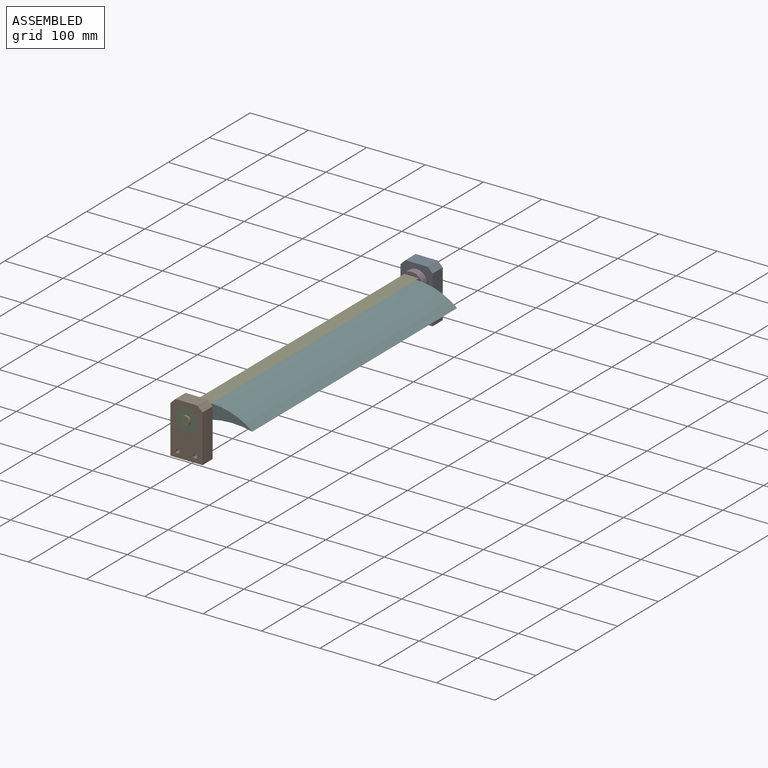
[diagram: assembled view]
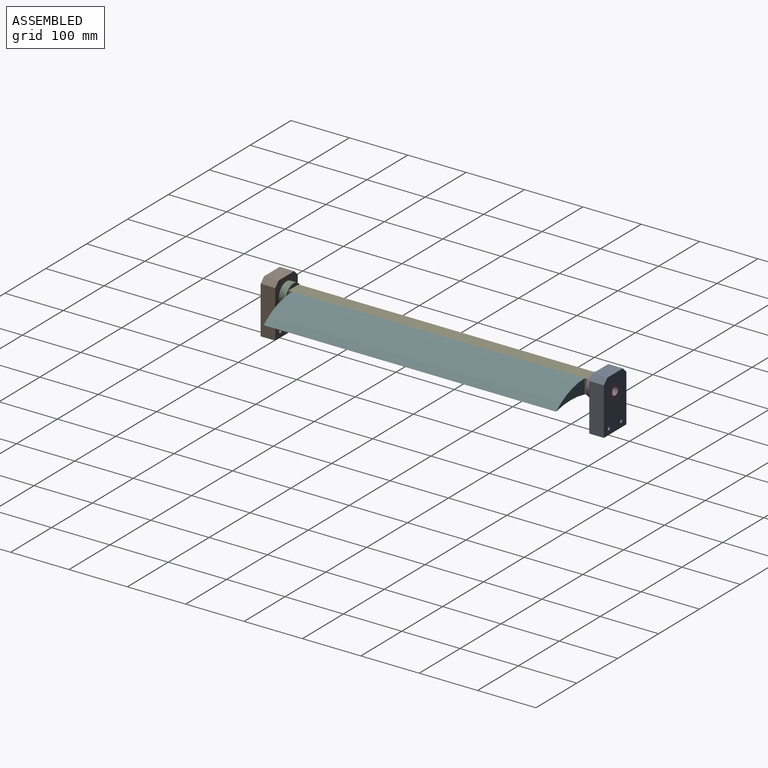
[diagram: assembled view, second angle]
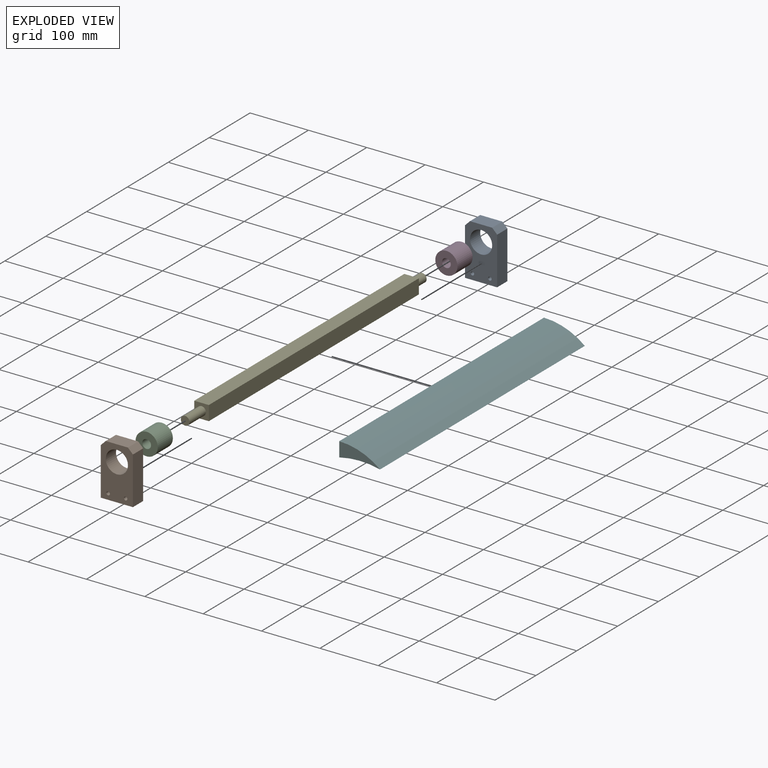
[diagram: exploded view]
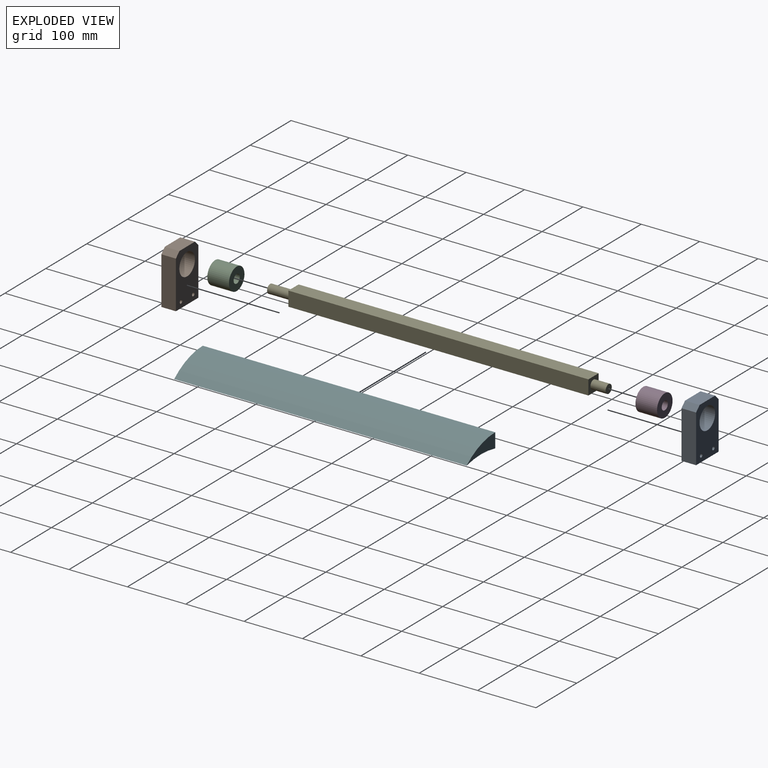
[diagram: exploded view, second angle]
ASSEMBLY  parts=6 mates=5
PART A: 11 faces, bbox 55x25x90 mm
  f0: plane 81.5x25mm, normal (-1,0,0), area 2037.5mm2, adj f1,f5,f7,f8
  f1: plane 55x25mm, normal (0,0,-1), area 1375mm2, adj f0,f2,f7,f8
  f2: plane 81.5x25mm, normal (1,0,0), area 2037.5mm2, adj f1,f3,f7,f8
  f3: plane 25x8.5mm, normal (0.71,0,0.71), area 300.5mm2, adj f2,f4,f7,f8
  f4: plane 38x25mm, normal (0,0,1), area 950mm2, adj f3,f5,f7,f8
  f5: plane 25x8.5mm, normal (-0.71,0,0.71), area 300.5mm2, adj f0,f4,f7,f8
  f6: cylinder r=19mm len=38mm, axis (0,1,0), area 2984.5mm2, adj f7,f8
  f7: plane 90x55mm, normal (0,-1,0), area 3687.1mm2, adj f0,f1,f2,f3,f4,f5,f6,f9
  f8: plane 90x55mm, normal (0,1,0), area 3687.1mm2, adj f0,f1,f2,f3,f4,f5,f6,f9
  f9: cylinder r=3mm len=25mm, axis (0,-1,0), area 471.2mm2, adj f7,f8
  f10: cylinder r=3mm len=25mm, axis (0,-1,0), area 471.2mm2, adj f7,f8
PART B: same geometry as A
PART C: 4 faces, bbox 38x37x38 mm
  f0: cylinder r=7.5mm len=37mm, axis (0,1,0), area 1743.6mm2, adj f2,f3
  f1: cylinder r=19mm len=38mm, axis (0,1,0), area 4417.1mm2, adj f2,f3
  f2: plane 38x38mm, normal (0,-1,0), area 957.4mm2, adj f0,f1
  f3: plane 38x38mm, normal (0,1,0), area 957.4mm2, adj f0,f1
PART D: same geometry as C
PART E: 10 faces, bbox 25x580x25 mm
  f0: plane 514x25mm, normal (0,0,1), area 12850mm2, adj f1,f3,f4,f5
  f1: plane 514x25mm, normal (-1,0,0), area 12850mm2, adj f0,f2,f4,f5
  f2: plane 514x25mm, normal (0,0,-1), area 12850mm2, adj f1,f3,f4,f5
  f3: plane 514x25mm, normal (1,0,0), area 12850mm2, adj f0,f2,f4,f5
  f4: plane 25x25mm, normal (0,-1,0), area 448.3mm2, adj f0,f1,f2,f3,f8
  f5: plane 25x25mm, normal (0,1,0), area 448.3mm2, adj f0,f1,f2,f3,f7
  f6: plane 15x15mm, normal (0,1,0), area 176.7mm2, adj f7
  f7: cylinder r=7.5mm len=26mm, axis (0,1,0), area 1225.2mm2, adj f5,f6
  f8: cylinder r=7.5mm len=40mm, axis (0,1,0), area 1885mm2, adj f4,f9
  f9: plane 15x15mm, normal (0,-1,0), area 176.7mm2, adj f8
PART F: 5 faces, bbox 70x501x25 mm
  f0: cylinder r=150mm len=501mm, axis (0,-1,0), area 35396.3mm2, adj f1,f2,f3,f4
  f1: plane 501x25mm, normal (-1,0,0), area 12525mm2, adj f0,f2,f3,f4
  f2: cylinder r=110.5mm len=501mm, axis (0,-1,0), area 37980mm2, adj f0,f1,f3,f4
  f3: plane 70x25mm, normal (0,1,0), area 1002.1mm2, adj f0,f1,f2
  f4: plane 70x25mm, normal (0,-1,0), area 1002.1mm2, adj f0,f1,f2
PLACE A rot(axis=(0,0,1),180deg) t=(-113.98,550.5,0)mm
PLACE B t=(113.98,12.5,0)mm
PLACE C t=(-31.99,24.5,13.92)mm
PLACE D rot(axis=(0,0,1),180deg) t=(31.99,538.5,13.92)mm
PLACE E t=(-89.54,538.5,15.02)mm
PLACE F t=(-89.54,538.5,15.02)mm
MATE fastened B.f6 <-> C.f0  axis (0,1,0) through (0,-12.5,62.5)mm
MATE fastened F.f1 <-> E.f3  axis (-1,0,0) through (12.5,281.5,62.5)mm
MATE fastened A.f6 <-> D.f0  axis (0,-1,0) through (0,575.5,62.5)mm
MATE fastened E.f7 <-> C.f0  axis (0,-1,0) through (0,24.5,62.5)mm
MATE fastened E.f7 <-> D.f0  axis (0,1,0) through (0,538.5,62.5)mm
